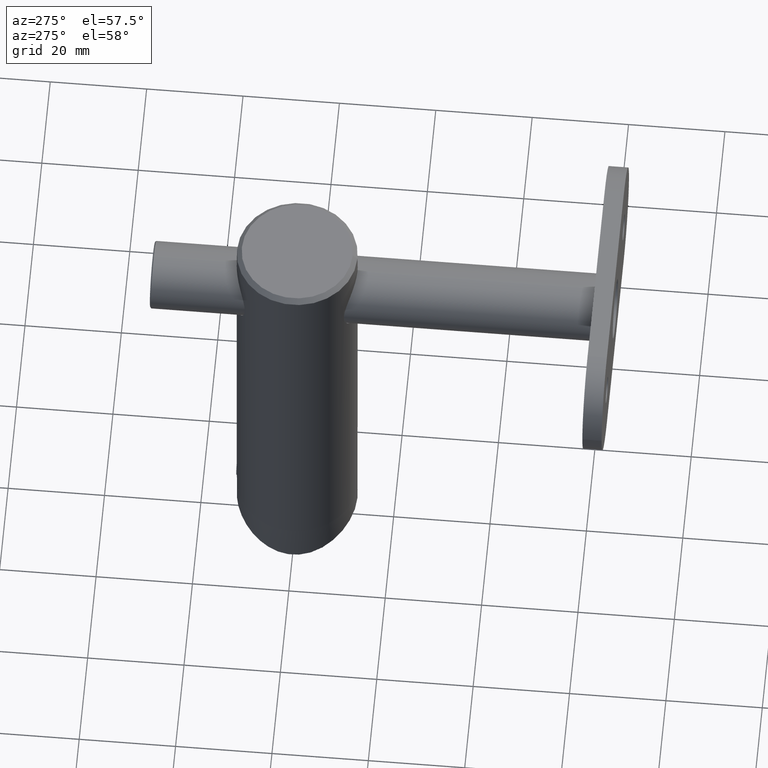
[diagram: clean part render]
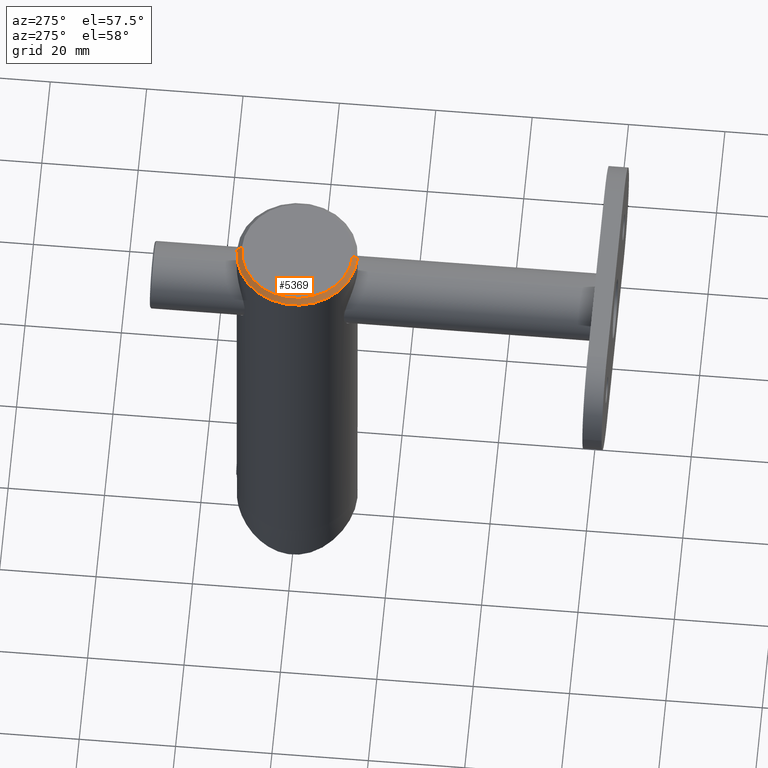
[diagram: same view with one face highlighted and labeled with its STEP entity id]
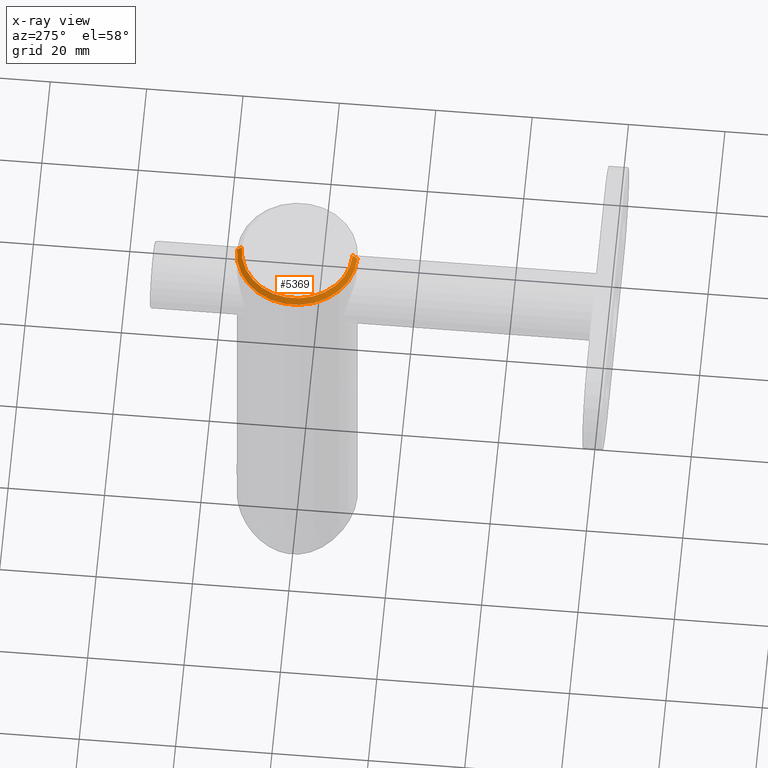
[diagram: x-ray of the same camera — body ghosted, the highlighted face saturated]
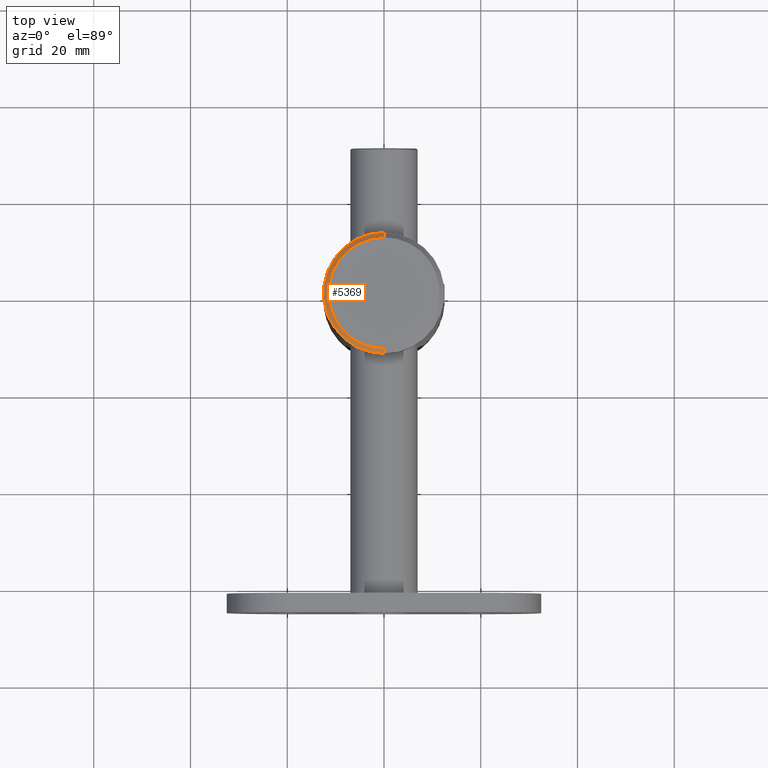
[diagram: same view with one face highlighted and labeled with its STEP entity id]
A machine part, auxiliary view. The second image highlights one B-rep face of the part: STEP entity #5369.
The next image is the same camera in x-ray: the body ghosted, the highlighted face saturated — about 0% of this face is hidden behind the body in this view.
A second angle (top view) of the same face is appended — the face is thin or edge-on in the first view.
In plain terms, the highlighted conical surface has half-angle 45 deg.
Its self-contained STEP definition (entity closure, byte-faithful):
#137 = ORIENTED_EDGE ( 'NONE', *, *, #12502, .F. ) ;
#168 = CARTESIAN_POINT ( 'NONE',  ( 0.000000000000000000, 12.49999999999999467, 87.00000000000000000 ) ) ;
#338 = VERTEX_POINT ( 'NONE', #168 ) ;
#648 = AXIS2_PLACEMENT_3D ( 'NONE', #1754, #15104, #1808 ) ;
#686 = DIRECTION ( 'NONE',  ( 0.000000000000000000, -1.000000000000000000, 0.000000000000000000 ) ) ;
#822 = CARTESIAN_POINT ( 'NONE',  ( 0.000000000000000000, -6.829089316830601455E-15, 87.00000000000000000 ) ) ;
#1514 = DIRECTION ( 'NONE',  ( 0.000000000000000000, 1.000000000000000000, 0.000000000000000000 ) ) ;
#1754 = CARTESIAN_POINT ( 'NONE',  ( 0.000000000000000000, -6.938893903907228378E-15, 88.00000000000000000 ) ) ;
#1808 = DIRECTION ( 'NONE',  ( 0.000000000000000000, -1.000000000000000000, 0.000000000000000000 ) ) ;
#2147 = CONICAL_SURFACE ( 'NONE', #5905, 12.50000000000000178, 0.7853981633974447263 ) ;
#2526 = AXIS2_PLACEMENT_3D ( 'NONE', #822, #9616, #686 ) ;
#2862 = FACE_OUTER_BOUND ( 'NONE', #6556, .T. ) ;
#3970 = EDGE_CURVE ( 'NONE', #7621, #4238, #12647, .T. ) ;
#4238 = VERTEX_POINT ( 'NONE', #15934 ) ;
#4385 = CIRCLE ( 'NONE', #648, 11.50000000000000888 ) ;
#4500 = CARTESIAN_POINT ( 'NONE',  ( 0.000000000000000000, 12.49999999999999467, 87.00000000000000000 ) ) ;
#4589 = EDGE_CURVE ( 'NONE', #4238, #338, #17818, .T. ) ;
#4734 = VECTOR ( 'NONE', #7689, 1000.000000000000114 ) ;
#5369 = ADVANCED_FACE ( 'NONE', ( #2862 ), #2147, .T. ) ;
#5882 = ORIENTED_EDGE ( 'NONE', *, *, #3970, .F. ) ;
#5905 = AXIS2_PLACEMENT_3D ( 'NONE', #11857, #9056, #1514 ) ;
#6556 = EDGE_LOOP ( 'NONE', ( #5882, #137, #11098, #10971 ) ) ;
#7621 = VERTEX_POINT ( 'NONE', #19019 ) ;
#7689 = DIRECTION ( 'NONE',  ( 8.659560562354903276E-17, -0.7071067811865450192, -0.7071067811865501263 ) ) ;
#9056 = DIRECTION ( 'NONE',  ( -0.000000000000000000, 1.098045870766268366E-16, -1.000000000000000000 ) ) ;
#9616 = DIRECTION ( 'NONE',  ( -0.000000000000000000, 1.098045870766268366E-16, -1.000000000000000000 ) ) ;
#10725 = EDGE_CURVE ( 'NONE', #12175, #338, #11395, .T. ) ;
#10971 = ORIENTED_EDGE ( 'NONE', *, *, #4589, .F. ) ;
#11098 = ORIENTED_EDGE ( 'NONE', *, *, #10725, .T. ) ;
#11395 = LINE ( 'NONE', #4500, #17162 ) ;
#11857 = CARTESIAN_POINT ( 'NONE',  ( 0.000000000000000000, -6.829089316830601455E-15, 87.00000000000000000 ) ) ;
#12175 = VERTEX_POINT ( 'NONE', #14096 ) ;
#12502 = EDGE_CURVE ( 'NONE', #12175, #7621, #4385, .T. ) ;
#12647 = LINE ( 'NONE', #18029, #4734 ) ;
#14096 = CARTESIAN_POINT ( 'NONE',  ( 0.000000000000000000, 11.50000000000000178, 88.00000000000000000 ) ) ;
#14873 = DIRECTION ( 'NONE',  ( 0.000000000000000000, 0.7071067811865452413, -0.7071067811865499042 ) ) ;
#15104 = DIRECTION ( 'NONE',  ( 0.000000000000000000, -1.098045870766271941E-16, 1.000000000000000000 ) ) ;
#15934 = CARTESIAN_POINT ( 'NONE',  ( 1.530808498934192507E-15, -12.50000000000000888, 87.00000000000000000 ) ) ;
#17162 = VECTOR ( 'NONE', #14873, 1000.000000000000114 ) ;
#17818 = CIRCLE ( 'NONE', #2526, 12.50000000000000178 ) ;
#18029 = CARTESIAN_POINT ( 'NONE',  ( 1.530808498934191719E-15, -12.50000000000000888, 87.00000000000000000 ) ) ;
#19019 = CARTESIAN_POINT ( 'NONE',  ( 1.469576158976824736E-15, -11.50000000000001599, 88.00000000000000000 ) ) ;